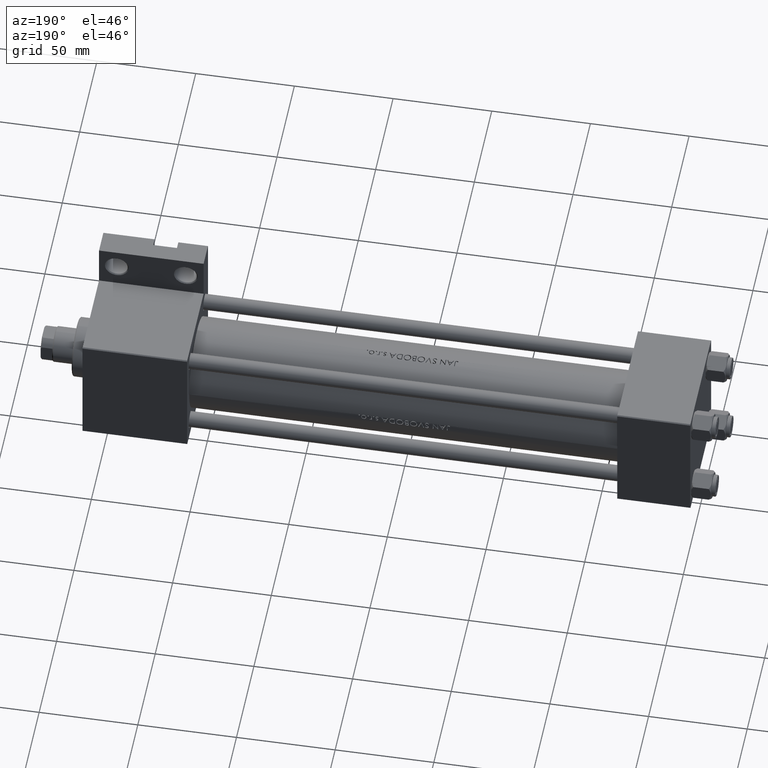
[diagram: clean part render]
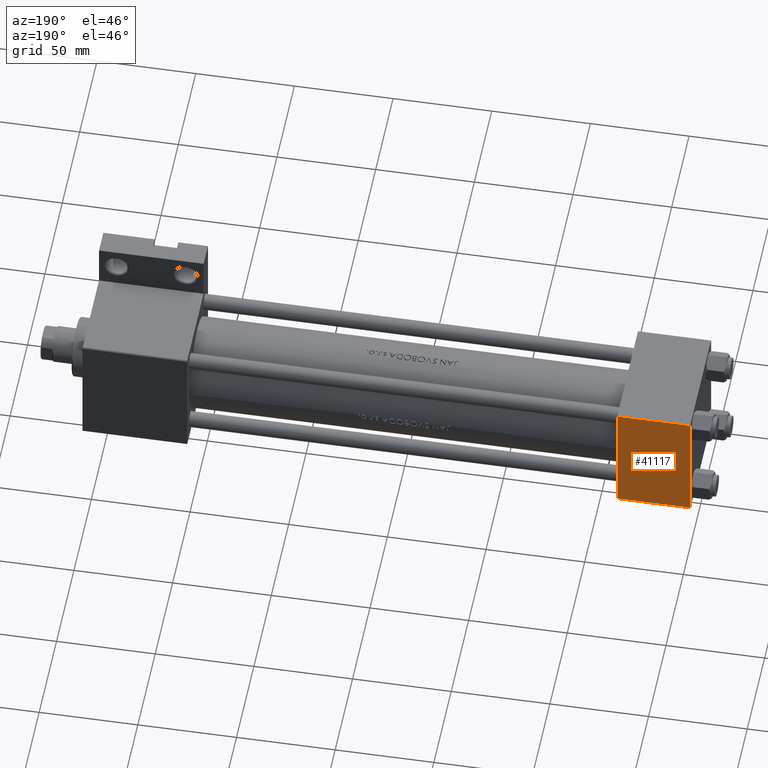
[diagram: same view with one face highlighted and labeled with its STEP entity id]
A machine part, auxiliary view. The second image highlights one B-rep face of the part: STEP entity #41117.
In plain terms, the highlighted planar face has unit normal (0, -1, -0).
Its self-contained STEP definition (entity closure, byte-faithful):
#541 = VECTOR ( 'NONE', #45734, 1000.000000000000000 ) ;
#670 = ORIENTED_EDGE ( 'NONE', *, *, #26896, .T. ) ;
#1210 = VECTOR ( 'NONE', #48696, 1000.000000000000000 ) ;
#2609 = CARTESIAN_POINT ( 'NONE',  ( 37.00000000000000000, 29.99999999999999289, 30.00000000000000000 ) ) ;
#3584 = CARTESIAN_POINT ( 'NONE',  ( 0.000000000000000000, 29.99999999999999289, 30.00000000000000000 ) ) ;
#3818 = LINE ( 'NONE', #37345, #11815 ) ;
#6826 = ORIENTED_EDGE ( 'NONE', *, *, #20655, .T. ) ;
#9715 = CARTESIAN_POINT ( 'NONE',  ( 0.000000000000000000, -29.49999999999998579, 29.99999999999999289 ) ) ;
#9721 = CARTESIAN_POINT ( 'NONE',  ( 0.000000000000000000, 29.49999999999999289, 30.00000000000000000 ) ) ;
#11815 = VECTOR ( 'NONE', #18844, 1000.000000000000000 ) ;
#13932 = DIRECTION ( 'NONE',  ( 0.000000000000000000, 1.000000000000000000, 1.156482317317871725E-16 ) ) ;
#13939 = EDGE_CURVE ( 'NONE', #17007, #32199, #36343, .T. ) ;
#15653 = LINE ( 'NONE', #30708, #541 ) ;
#17007 = VERTEX_POINT ( 'NONE', #42529 ) ;
#18614 = LINE ( 'NONE', #3584, #1210 ) ;
#18844 = DIRECTION ( 'NONE',  ( 0.000000000000000000, -1.000000000000000000, -1.156482317317871725E-16 ) ) ;
#19152 = ORIENTED_EDGE ( 'NONE', *, *, #38600, .F. ) ;
#20655 = EDGE_CURVE ( 'NONE', #32199, #26969, #18614, .T. ) ;
#25241 = DIRECTION ( 'NONE',  ( -1.000000000000000000, 0.000000000000000000, 0.000000000000000000 ) ) ;
#26896 = EDGE_CURVE ( 'NONE', #26969, #44158, #15653, .T. ) ;
#26969 = VERTEX_POINT ( 'NONE', #9715 ) ;
#28982 = FACE_OUTER_BOUND ( 'NONE', #32492, .T. ) ;
#30708 = CARTESIAN_POINT ( 'NONE',  ( 37.00000000000000000, -29.50000000000000000, 29.99999999999999289 ) ) ;
#32199 = VERTEX_POINT ( 'NONE', #46025 ) ;
#32492 = EDGE_LOOP ( 'NONE', ( #6826, #670, #19152, #39375 ) ) ;
#33398 = DIRECTION ( 'NONE',  ( 0.000000000000000000, 1.156482317317871725E-16, -1.000000000000000000 ) ) ;
#33917 = AXIS2_PLACEMENT_3D ( 'NONE', #2609, #33398, #13932 ) ;
#36343 = LINE ( 'NONE', #9721, #41551 ) ;
#36373 = PLANE ( 'NONE',  #33917 ) ;
#37345 = CARTESIAN_POINT ( 'NONE',  ( 37.00000000000000000, 29.99999999999999289, 30.00000000000000000 ) ) ;
#38600 = EDGE_CURVE ( 'NONE', #17007, #44158, #3818, .T. ) ;
#39375 = ORIENTED_EDGE ( 'NONE', *, *, #13939, .T. ) ;
#41117 = ADVANCED_FACE ( 'NONE', ( #28982 ), #36373, .F. ) ;
#41551 = VECTOR ( 'NONE', #25241, 1000.000000000000000 ) ;
#42529 = CARTESIAN_POINT ( 'NONE',  ( 37.00000000000000000, 29.49999999999999289, 30.00000000000000000 ) ) ;
#44158 = VERTEX_POINT ( 'NONE', #45372 ) ;
#45372 = CARTESIAN_POINT ( 'NONE',  ( 37.00000000000000000, -29.49999999999998579, 29.99999999999999289 ) ) ;
#45734 = DIRECTION ( 'NONE',  ( 1.000000000000000000, 0.000000000000000000, 0.000000000000000000 ) ) ;
#46025 = CARTESIAN_POINT ( 'NONE',  ( 0.000000000000000000, 29.49999999999999289, 30.00000000000000000 ) ) ;
#48696 = DIRECTION ( 'NONE',  ( 0.000000000000000000, -1.000000000000000000, -1.156482317317871725E-16 ) ) ;